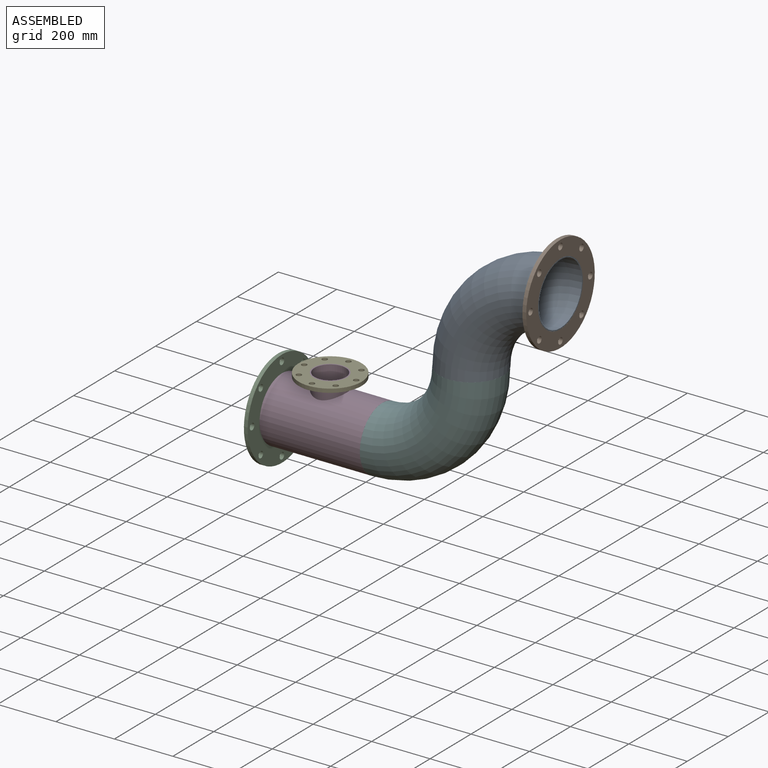
[diagram: assembled view]
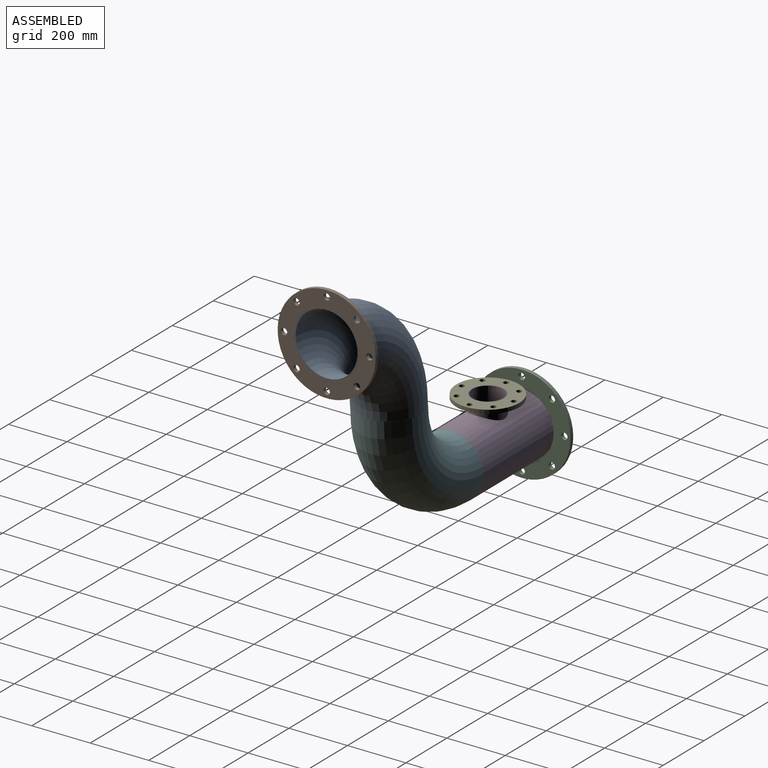
[diagram: assembled view, second angle]
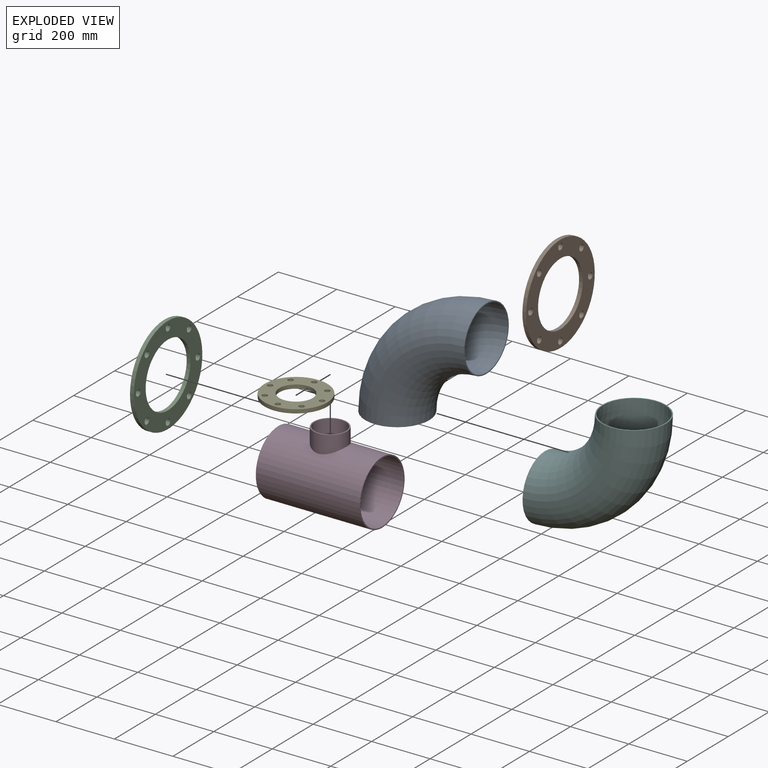
[diagram: exploded view]
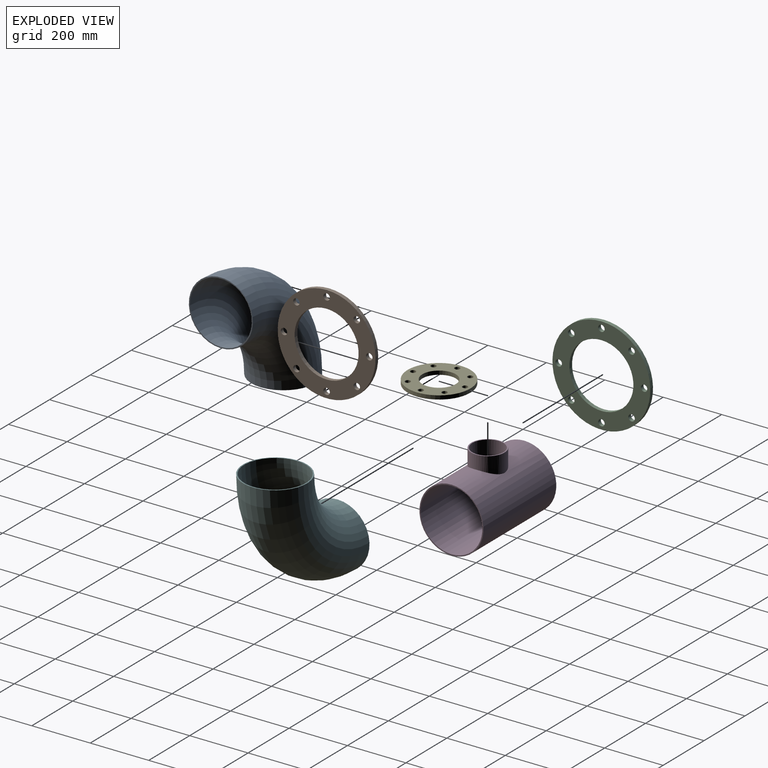
[diagram: exploded view, second angle]
ASSEMBLY  parts=6 mates=5
PART A: 4 faces, bbox 448.7x219.1x448.7 mm
  f0: torus R=305mm, axis (0,-1,0), area 318452.2mm2, adj f1,f2
  f1: plane 219.1x219.1mm, normal (1,0,0), area 2543.7mm2, adj f0,f3
  f2: plane 219.1x219.1mm, normal (0,0,-1), area 2543.7mm2, adj f0,f3
  f3: torus R=305mm, axis (0,-1,0), area 329770.6mm2, adj f1,f2
PART B: 12 faces, bbox 335x335x13 mm
  f0: cylinder r=109.55mm len=219.1mm, axis (0,0,-1), area 8948.2mm2, adj f2,f3
  f1: cylinder r=167.5mm len=335mm, axis (0,0,-1), area 13681.6mm2, adj f2,f3
  f2: plane 335x335mm, normal (0,0,1), area 47397.4mm2, adj f0,f1,f4,f5,f6,f7,f8,f9
  f3: plane 335x335mm, normal (0,0,-1), area 47397.4mm2, adj f0,f1,f4,f5,f6,f7,f8,f9
  f4: cylinder r=11mm len=22mm, axis (0,0,-1), area 898.5mm2, adj f2,f3
  f5: cylinder r=11mm len=22mm, axis (0,0,-1), area 898.5mm2, adj f2,f3
  f6: cylinder r=11mm len=22mm, axis (0,0,-1), area 898.5mm2, adj f2,f3
  f7: cylinder r=11mm len=22mm, axis (0,0,-1), area 898.5mm2, adj f2,f3
  f8: cylinder r=11mm len=22mm, axis (0,0,-1), area 898.5mm2, adj f2,f3
  f9: cylinder r=11mm len=22mm, axis (0,0,-1), area 898.5mm2, adj f2,f3
  f10: cylinder r=11mm len=22mm, axis (0,0,-1), area 898.5mm2, adj f2,f3
  f11: cylinder r=11mm len=22mm, axis (0,0,-1), area 898.5mm2, adj f2,f3
PART C: same geometry as B
PART D: 7 faces, bbox 356x219.1x265.6 mm
  f0: plane 219.1x219.1mm, normal (-1,0,0), area 2543.7mm2, adj f1,f5
  f1: cylinder r=109.55mm len=356mm, axis (1,0,0), area 234393.3mm2, adj f0,f2,f4
  f2: plane 219.1x219.1mm, normal (1,0,0), area 2543.7mm2, adj f1,f5
  f3: plane 114.3x114.3mm, normal (0,0,1), area 1305.7mm2, adj f4,f6
  f4: cylinder r=57.15mm len=114.3mm, axis (0,0,1), area 19511.8mm2, adj f1,f3
  f5: cylinder r=105.79mm len=356mm, axis (1,0,0), area 227364.6mm2, adj f0,f2,f6
  f6: cylinder r=53.39mm len=106.78mm, axis (0,0,1), area 19224.5mm2, adj f3,f5
PART E: 12 faces, bbox 215x215x13 mm
  f0: cylinder r=57.15mm len=114.3mm, axis (0,0,-1), area 4668.1mm2, adj f2,f3
  f1: cylinder r=107.5mm len=215mm, axis (0,0,-1), area 8780.8mm2, adj f2,f3
  f2: plane 215x215mm, normal (0,0,1), area 24008.5mm2, adj f0,f1,f4,f5,f6,f7,f8,f9
  f3: plane 215x215mm, normal (0,0,-1), area 24008.5mm2, adj f0,f1,f4,f5,f6,f7,f8,f9
  f4: cylinder r=9mm len=18mm, axis (0,0,-1), area 735.1mm2, adj f2,f3
  f5: cylinder r=9mm len=18mm, axis (0,0,-1), area 735.1mm2, adj f2,f3
  f6: cylinder r=9mm len=18mm, axis (0,0,-1), area 735.1mm2, adj f2,f3
  f7: cylinder r=9mm len=18mm, axis (0,0,-1), area 735.1mm2, adj f2,f3
  f8: cylinder r=9mm len=18mm, axis (0,0,-1), area 735.1mm2, adj f2,f3
  f9: cylinder r=9mm len=18mm, axis (0,0,-1), area 735.1mm2, adj f2,f3
  f10: cylinder r=9mm len=18mm, axis (0,0,-1), area 735.1mm2, adj f2,f3
  f11: cylinder r=9mm len=18mm, axis (0,0,-1), area 735.1mm2, adj f2,f3
PART F: same geometry as A
PLACE A t=(246.96,-458.46,186.87)mm
PLACE B rot(axis=(0,-1,0),90deg) t=(246.96,-458.46,491.87)mm
PLACE C rot(axis=(0,-1,0),90deg) t=(-706.04,-458.46,-118.13)mm
PLACE D t=(-541.04,-458.46,-118.13)mm
PLACE E t=(-541.04,-458.46,24.87)mm
PLACE F rot(axis=(0,1,0),180deg) t=(-363.04,-458.46,186.87)mm
MATE fastened F.f1 <-> D.f1  axis (-1,0,0) through (-363.04,-458.46,-118.13)mm
MATE fastened D.f1 <-> C.f0  axis (-1,0,0) through (-719.04,-458.46,-118.13)mm
MATE fastened D.f4 <-> E.f0  axis (0,0,-1) through (-541.04,-458.46,37.87)mm
MATE fastened A.f1 <-> B.f0  axis (1,0,0) through (246.96,-458.46,491.87)mm
MATE fastened A.f2 <-> F.f2  axis (0,0,-1) through (-58.04,-458.46,186.87)mm
